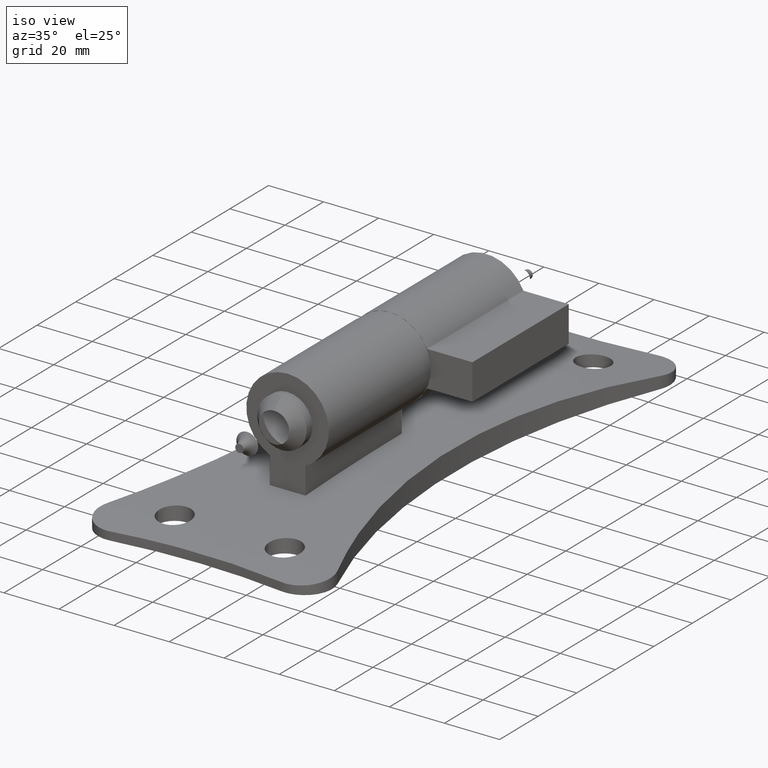
[diagram: clean part render]
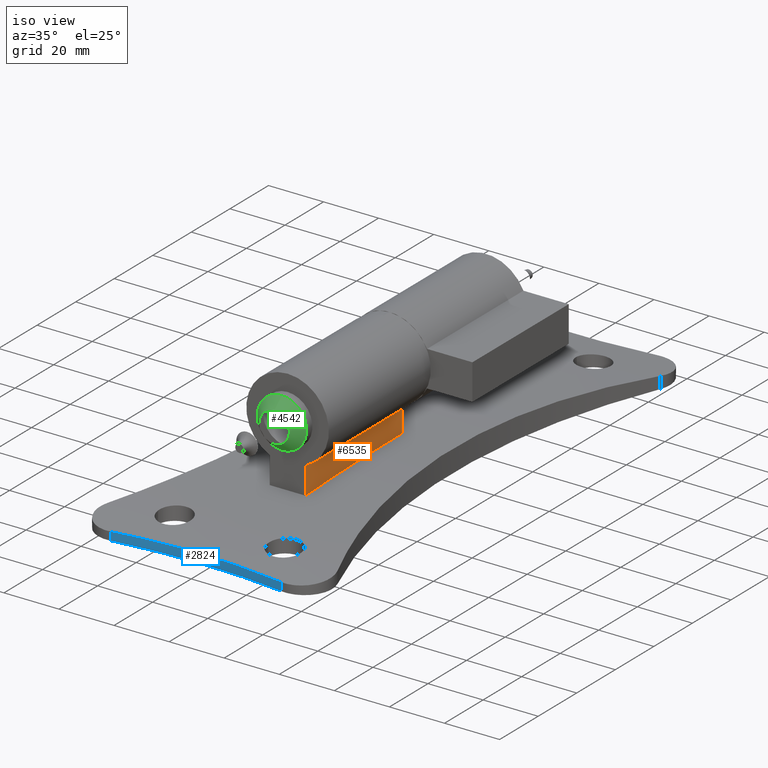
[diagram: same view with three faces highlighted in distinct colors, each labeled with its STEP entity id]
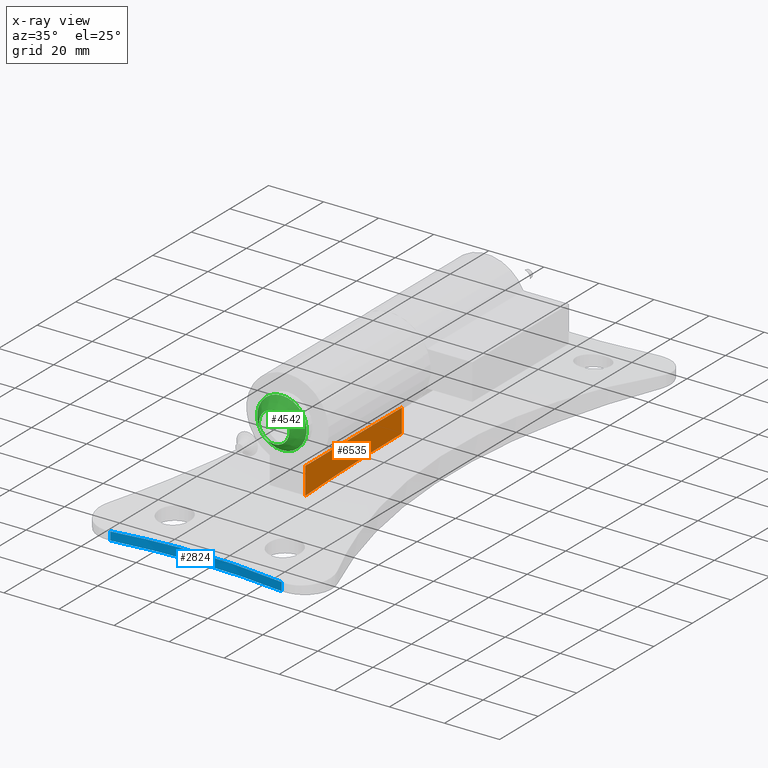
[diagram: x-ray of the same camera — body ghosted, the three highlighted faces saturated]
A machine part, iso view with three faces highlighted in distinct colors.
The next image is the same camera in x-ray (body ghosted, the three faces saturated) — at least one of them is partly hidden behind the body in this view.
Their STEP definitions:

[orange] entity #6535 — the highlighted planar face has unit normal (-1, 0, 0).
#77 = AXIS2_PLACEMENT_3D ( 'NONE', #5020, #6675, #11379 ) ;
#311 = VERTEX_POINT ( 'NONE', #794 ) ;
#794 = CARTESIAN_POINT ( 'NONE',  ( 6.499999999999999112, -49.99999999999997158, 6.690304111017897348 ) ) ;
#1040 = AXIS2_PLACEMENT_3D ( 'NONE', #7132, #8099, #10891 ) ;
#1444 = FACE_OUTER_BOUND ( 'NONE', #9052, .T. ) ;
#1609 = EDGE_CURVE ( 'NONE', #9383, #10942, #9232, .T. ) ;
#2396 = ORIENTED_EDGE ( 'NONE', *, *, #4854, .F. ) ;
#2927 = CARTESIAN_POINT ( 'NONE',  ( 6.499999999999998224, -50.00000000000000000, 16.48149416540422507 ) ) ;
#2988 = LINE ( 'NONE', #8855, #3692 ) ;
#3389 = DIRECTION ( 'NONE',  ( -0.000000000000000000, -0.000000000000000000, 1.000000000000000000 ) ) ;
#3692 = VECTOR ( 'NONE', #3389, 1000.000000000000000 ) ;
#4551 = PLANE ( 'NONE',  #1040 ) ;
#4854 = EDGE_CURVE ( 'NONE', #10942, #6342, #5504, .T. ) ;
#4997 = ORIENTED_EDGE ( 'NONE', *, *, #1609, .F. ) ;
#5020 = CARTESIAN_POINT ( 'NONE',  ( 6.499999999999999112, 0.000000000000000000, -947.0748858447125258 ) ) ;
#5291 = EDGE_CURVE ( 'NONE', #311, #9383, #2988, .T. ) ;
#5504 = LINE ( 'NONE', #9825, #10346 ) ;
#6342 = VERTEX_POINT ( 'NONE', #10460 ) ;
#6535 = ADVANCED_FACE ( 'NONE', ( #1444 ), #4551, .F. ) ;
#6675 = DIRECTION ( 'NONE',  ( -1.000000000000000000, -0.000000000000000000, -0.000000000000000000 ) ) ;
#7132 = CARTESIAN_POINT ( 'NONE',  ( 6.500000000000000000, 0.000000000000000000, -500000.0000000000582 ) ) ;
#7689 = CIRCLE ( 'NONE', #77, 955.0748858447125258 ) ;
#7730 = DIRECTION ( 'NONE',  ( 0.000000000000000000, 1.000000000000000000, 0.000000000000000000 ) ) ;
#7838 = ORIENTED_EDGE ( 'NONE', *, *, #10909, .T. ) ;
#8099 = DIRECTION ( 'NONE',  ( -1.000000000000000000, 0.000000000000000000, -0.000000000000000000 ) ) ;
#8549 = CARTESIAN_POINT ( 'NONE',  ( 6.499999999999998224, -50.00000000000000000, 16.48149416540422507 ) ) ;
#8855 = CARTESIAN_POINT ( 'NONE',  ( 6.500000000000000000, -50.00000000000000000, -500000.0000000000582 ) ) ;
#8987 = DIRECTION ( 'NONE',  ( 2.045304096361578189E-16, 0.000000000000000000, -1.000000000000000000 ) ) ;
#9052 = EDGE_LOOP ( 'NONE', ( #11156, #7838, #2396, #4997 ) ) ;
#9232 = LINE ( 'NONE', #8549, #9517 ) ;
#9301 = CARTESIAN_POINT ( 'NONE',  ( 6.499999999999998224, 0.000000000000000000, 16.48149416540422507 ) ) ;
#9383 = VERTEX_POINT ( 'NONE', #2927 ) ;
#9517 = VECTOR ( 'NONE', #7730, 1000.000000000000000 ) ;
#9825 = CARTESIAN_POINT ( 'NONE',  ( 6.499999999999998224, 0.000000000000000000, 16.48149416540422507 ) ) ;
#10346 = VECTOR ( 'NONE', #8987, 1000.000000000000000 ) ;
#10460 = CARTESIAN_POINT ( 'NONE',  ( 6.499999999999999112, 0.000000000000000000, 8.000000000000007105 ) ) ;
#10891 = DIRECTION ( 'NONE',  ( -0.000000000000000000, 0.000000000000000000, 1.000000000000000000 ) ) ;
#10909 = EDGE_CURVE ( 'NONE', #311, #6342, #7689, .T. ) ;
#10942 = VERTEX_POINT ( 'NONE', #9301 ) ;
#11156 = ORIENTED_EDGE ( 'NONE', *, *, #5291, .F. ) ;
#11379 = DIRECTION ( 'NONE',  ( 0.000000000000000000, 0.000000000000000000, 1.000000000000000000 ) ) ;

[blue] entity #2824 — the highlighted cylindrical surface (partial cylindrical patch) has radius 220.452 mm, axis along (0, 0, -1).
#232 = CARTESIAN_POINT ( 'NONE',  ( -31.08972702664043197, -97.50000000000000000, 8.000000000000000000 ) ) ;
#689 = LINE ( 'NONE', #4260, #1922 ) ;
#701 = DIRECTION ( 'NONE',  ( -0.000000000000000000, 0.000000000000000000, -1.000000000000000000 ) ) ;
#1003 = CARTESIAN_POINT ( 'NONE',  ( 31.08972702664037868, -97.50000000000000000, 3.010261692754534479 ) ) ;
#1550 = AXIS2_PLACEMENT_3D ( 'NONE', #8247, #6492, #2845 ) ;
#1922 = VECTOR ( 'NONE', #3319, 1000.000000000000000 ) ;
#2191 = VERTEX_POINT ( 'NONE', #1003 ) ;
#2316 = VECTOR ( 'NONE', #2873, 1000.000000000000000 ) ;
#2710 = CYLINDRICAL_SURFACE ( 'NONE', #5475, 220.4518388562520386 ) ;
#2824 = ADVANCED_FACE ( 'NONE', ( #8080 ), #2710, .F. ) ;
#2845 = DIRECTION ( 'NONE',  ( 1.000000000000000000, 0.000000000000000000, 0.000000000000000000 ) ) ;
#2873 = DIRECTION ( 'NONE',  ( -0.000000000000000000, 0.000000000000000000, -1.000000000000000000 ) ) ;
#3252 = VERTEX_POINT ( 'NONE', #9649 ) ;
#3319 = DIRECTION ( 'NONE',  ( -0.000000000000000000, 0.000000000000000000, -1.000000000000000000 ) ) ;
#4260 = CARTESIAN_POINT ( 'NONE',  ( 31.08972702664037513, -97.50000000000000000, 8.000000000000000000 ) ) ;
#4369 = DIRECTION ( 'NONE',  ( -1.000000000000000000, 0.000000000000000000, 0.000000000000000000 ) ) ;
#5475 = AXIS2_PLACEMENT_3D ( 'NONE', #9661, #701, #4369 ) ;
#5584 = EDGE_LOOP ( 'NONE', ( #8117, #5870, #7499, #8699 ) ) ;
#5870 = ORIENTED_EDGE ( 'NONE', *, *, #9770, .T. ) ;
#5879 = EDGE_CURVE ( 'NONE', #7398, #3252, #11412, .T. ) ;
#6002 = B_SPLINE_CURVE_WITH_KNOTS ( 'NONE', 3,
 ( #9031, #8202, #7519, #10276, #6563 ),
 .UNSPECIFIED., .F., .F.,
 ( 4, 1, 4 ),
 ( 0.000000000000000000, 0.03108972702664040272, 0.06217945405328080544 ),
 .UNSPECIFIED. ) ;
#6158 = EDGE_CURVE ( 'NONE', #2191, #3252, #689, .T. ) ;
#6492 = DIRECTION ( 'NONE',  ( -0.000000000000000000, -0.000000000000000000, -1.000000000000000000 ) ) ;
#6563 = CARTESIAN_POINT ( 'NONE',  ( -31.08972702664043197, -97.50000000000000000, 3.010261692754534479 ) ) ;
#6871 = CARTESIAN_POINT ( 'NONE',  ( -31.08972702664043197, -97.50000000000000000, 3.010261692754534479 ) ) ;
#7398 = VERTEX_POINT ( 'NONE', #7586 ) ;
#7499 = ORIENTED_EDGE ( 'NONE', *, *, #10817, .T. ) ;
#7519 = CARTESIAN_POINT ( 'NONE',  ( 0.000000000000000000, -94.56973397199257647, 3.305810592700985318 ) ) ;
#7586 = CARTESIAN_POINT ( 'NONE',  ( -31.08972702664043197, -97.50000000000000000, 0.000000000000000000 ) ) ;
#8080 = FACE_OUTER_BOUND ( 'NONE', #5584, .T. ) ;
#8117 = ORIENTED_EDGE ( 'NONE', *, *, #6158, .F. ) ;
#8202 = CARTESIAN_POINT ( 'NONE',  ( 20.72648468442690728, -96.02374582520307911, 3.161758411144210967 ) ) ;
#8247 = CARTESIAN_POINT ( 'NONE',  ( 0.000000000000000000, -315.7485787548498593, 0.000000000000000000 ) ) ;
#8699 = ORIENTED_EDGE ( 'NONE', *, *, #5879, .T. ) ;
#9031 = CARTESIAN_POINT ( 'NONE',  ( 31.08972702664037868, -97.50000000000000000, 3.010261692754534479 ) ) ;
#9533 = LINE ( 'NONE', #232, #2316 ) ;
#9621 = VERTEX_POINT ( 'NONE', #6871 ) ;
#9649 = CARTESIAN_POINT ( 'NONE',  ( 31.08972702664037513, -97.50000000000000000, 0.000000000000000000 ) ) ;
#9661 = CARTESIAN_POINT ( 'NONE',  ( 0.000000000000000000, -315.7485787548498593, 8.000000000000000000 ) ) ;
#9770 = EDGE_CURVE ( 'NONE', #2191, #9621, #6002, .T. ) ;
#10276 = CARTESIAN_POINT ( 'NONE',  ( -20.72648468442698899, -96.02374582520315016, 3.161758411144194092 ) ) ;
#10817 = EDGE_CURVE ( 'NONE', #9621, #7398, #9533, .T. ) ;
#11412 = CIRCLE ( 'NONE', #1550, 220.4518388562520386 ) ;

[green] entity #4542 — the highlighted conical surface has half-angle 41.186 deg.
#174 = DIRECTION ( 'NONE',  ( -0.000000000000000000, 1.000000000000000000, -0.000000000000000000 ) ) ;
#378 = AXIS2_PLACEMENT_3D ( 'NONE', #4671, #174, #2107 ) ;
#1130 = ORIENTED_EDGE ( 'NONE', *, *, #1386, .F. ) ;
#1386 = EDGE_CURVE ( 'NONE', #11674, #11674, #7532, .T. ) ;
#1837 = EDGE_LOOP ( 'NONE', ( #1130 ) ) ;
#2107 = DIRECTION ( 'NONE',  ( 0.000000000000000000, 0.000000000000000000, 1.000000000000000000 ) ) ;
#2146 = FACE_BOUND ( 'NONE', #2661, .T. ) ;
#2637 = DIRECTION ( 'NONE',  ( 0.000000000000000000, 0.000000000000000000, 1.000000000000000000 ) ) ;
#2661 = EDGE_LOOP ( 'NONE', ( #8196 ) ) ;
#2681 = CARTESIAN_POINT ( 'NONE',  ( 0.000000000000000000, -52.98058276074876716, 39.00000000000000711 ) ) ;
#3348 = CIRCLE ( 'NONE', #378, 5.500000000000005329 ) ;
#3875 = VERTEX_POINT ( 'NONE', #5286 ) ;
#4306 = DIRECTION ( 'NONE',  ( 0.000000000000000000, 0.000000000000000000, 1.000000000000000000 ) ) ;
#4338 = AXIS2_PLACEMENT_3D ( 'NONE', #7160, #6111, #2637 ) ;
#4542 = ADVANCED_FACE ( 'NONE', ( #8613, #2146 ), #4682, .T. ) ;
#4671 = CARTESIAN_POINT ( 'NONE',  ( 0.000000000000000000, -56.98058276074877426, 30.00000000000000000 ) ) ;
#4682 = CONICAL_SURFACE ( 'NONE', #4338, 5.500000000000005329, 0.7188299996216239718 ) ;
#5286 = CARTESIAN_POINT ( 'NONE',  ( 0.000000000000000000, -56.98058276074877426, 35.50000000000000711 ) ) ;
#6111 = DIRECTION ( 'NONE',  ( -0.000000000000000000, 1.000000000000000000, -0.000000000000000000 ) ) ;
#6273 = EDGE_CURVE ( 'NONE', #3875, #3875, #3348, .T. ) ;
#7160 = CARTESIAN_POINT ( 'NONE',  ( 0.000000000000000000, -56.98058276074877426, 30.00000000000000000 ) ) ;
#7532 = CIRCLE ( 'NONE', #11485, 9.000000000000007105 ) ;
#8196 = ORIENTED_EDGE ( 'NONE', *, *, #6273, .T. ) ;
#8613 = FACE_OUTER_BOUND ( 'NONE', #1837, .T. ) ;
#10526 = CARTESIAN_POINT ( 'NONE',  ( 0.000000000000000000, -52.98058276074876716, 30.00000000000000000 ) ) ;
#11435 = DIRECTION ( 'NONE',  ( -0.000000000000000000, 1.000000000000000000, -0.000000000000000000 ) ) ;
#11485 = AXIS2_PLACEMENT_3D ( 'NONE', #10526, #11435, #4306 ) ;
#11674 = VERTEX_POINT ( 'NONE', #2681 ) ;